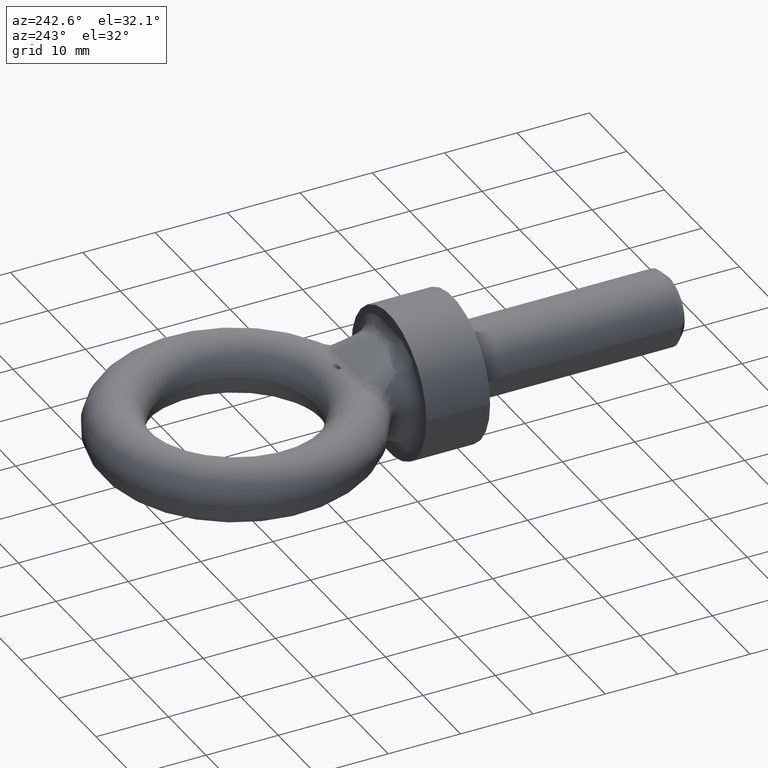
[diagram: clean part render]
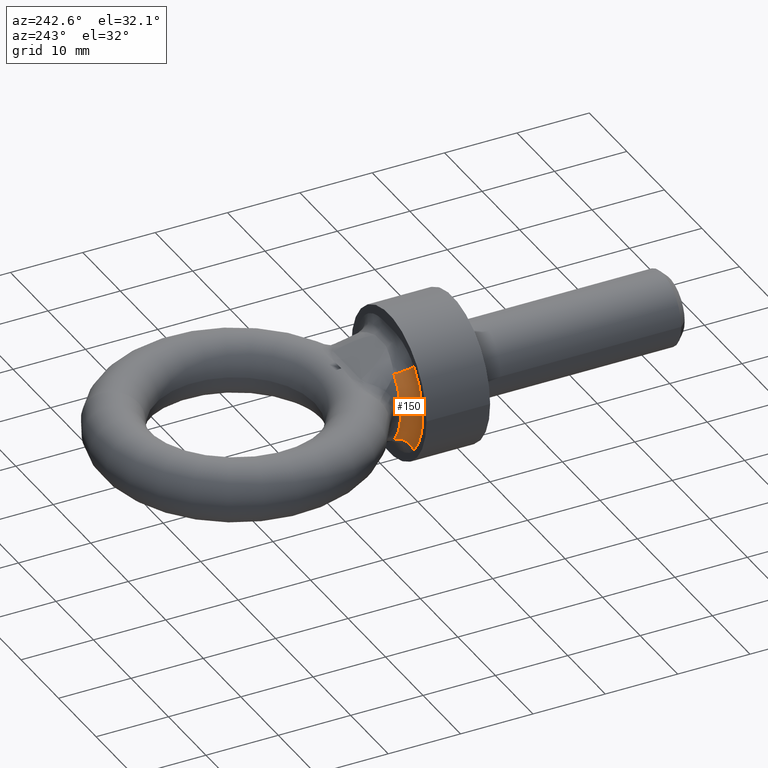
[diagram: same view with one face highlighted and labeled with its STEP entity id]
A machine part, auxiliary view. The second image highlights one B-rep face of the part: STEP entity #150.
In plain terms, the highlighted toroidal blend (fillet) surface has major radius 9 mm and minor (blend) radius 2 mm.
Its self-contained STEP definition (entity closure, byte-faithful):
#72=TOROIDAL_SURFACE('',#659,9.,2.);
#150=ADVANCED_FACE('',(#191),#72,.F.);
#191=FACE_OUTER_BOUND('',#233,.T.);
#233=EDGE_LOOP('',(#437,#438,#439,#440));
#281=CIRCLE('',#619,7.);
#292=CIRCLE('',#642,9.);
#303=CIRCLE('',#655,2.);
#305=CIRCLE('',#658,2.);
#437=ORIENTED_EDGE('',*,*,#595,.T.);
#438=ORIENTED_EDGE('',*,*,#567,.F.);
#439=ORIENTED_EDGE('',*,*,#597,.F.);
#440=ORIENTED_EDGE('',*,*,#529,.F.);
#480=VERTEX_POINT('',#805);
#481=VERTEX_POINT('',#807);
#510=VERTEX_POINT('',#1047);
#511=VERTEX_POINT('',#1049);
#529=EDGE_CURVE('',#480,#481,#281,.T.);
#567=EDGE_CURVE('',#510,#511,#292,.T.);
#595=EDGE_CURVE('',#480,#511,#303,.T.);
#597=EDGE_CURVE('',#481,#510,#305,.T.);
#619=AXIS2_PLACEMENT_3D('',#806,#682,#683);
#642=AXIS2_PLACEMENT_3D('',#1048,#731,#732);
#655=AXIS2_PLACEMENT_3D('',#1439,#758,#759);
#658=AXIS2_PLACEMENT_3D('',#1454,#764,#765);
#659=AXIS2_PLACEMENT_3D('',#1455,#766,#767);
#682=DIRECTION('',(-1.1682767539609E-18,1.,0.));
#683=DIRECTION('',(1.,0.,0.));
#731=DIRECTION('',(1.1682767539609E-18,-1.,0.));
#732=DIRECTION('',(1.,0.,0.));
#758=DIRECTION('',(0.674878611723102,2.73436444476954E-17,-0.737928763119245));
#759=DIRECTION('',(-0.737928763119245,0.,-0.674878611723102));
#764=DIRECTION('',(-0.674878611723101,0.,-0.737928763119245));
#765=DIRECTION('',(-0.737928763119245,0.,0.674878611723102));
#766=DIRECTION('',(1.1682767539609E-18,-1.,0.));
#767=DIRECTION('',(1.,0.,0.));
#805=CARTESIAN_POINT('',(-5.16550134183472,10.8,-4.72415028206171));
#806=CARTESIAN_POINT('',(4.90676236663578E-18,10.8,0.));
#807=CARTESIAN_POINT('',(-5.16550134183472,10.8,4.72415028206171));
#1047=CARTESIAN_POINT('',(-6.64135886807321,8.8,6.07390750550791));
#1048=CARTESIAN_POINT('',(7.24331587455758E-18,8.8,0.));
#1049=CARTESIAN_POINT('',(-6.64135886807321,8.8,-6.07390750550791));
#1439=CARTESIAN_POINT('',(-6.64135886807321,10.8,-6.07390750550791));
#1454=CARTESIAN_POINT('',(-6.64135886807321,10.8,6.07390750550791));
#1455=CARTESIAN_POINT('',(4.90676236663578E-18,10.8,0.));